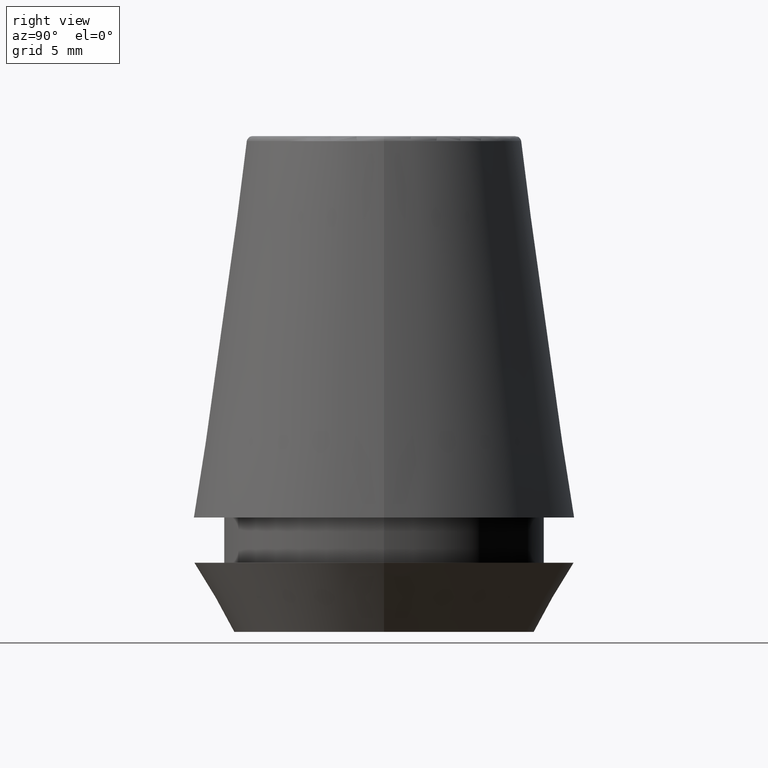
[diagram: clean part render]
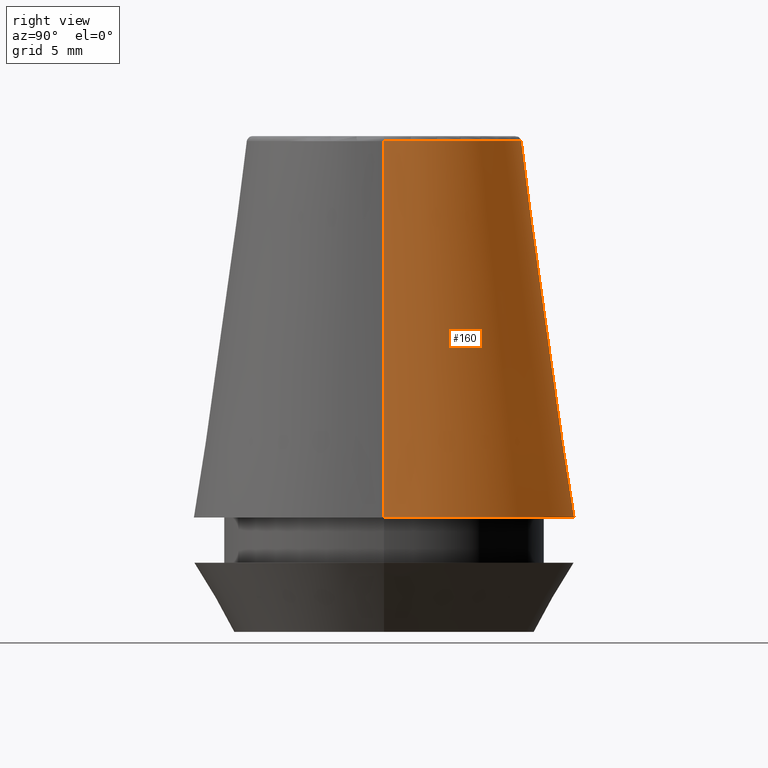
[diagram: same view with one face highlighted and labeled with its STEP entity id]
A machine part, right view. The second image highlights one B-rep face of the part: STEP entity #160.
In plain terms, the highlighted conical surface has half-angle 8 deg.
Its self-contained STEP definition (entity closure, byte-faithful):
#26 = EDGE_LOOP ( 'NONE', ( #252, #148, #291, #194 ) ) ;
#32 = DIRECTION ( 'NONE',  ( 1.000000000000000000, 0.0000000000000000000, 0.0000000000000000000 ) ) ;
#49 = CARTESIAN_POINT ( 'NONE',  ( 13.03657776635556700, 1.596520323340289600E-015, 7.842050807568876200 ) ) ;
#77 = DIRECTION ( 'NONE',  ( 0.1391731009600587800, 1.704378926181474000E-017, -0.9902680687415712500 ) ) ;
#81 = DIRECTION ( 'NONE',  ( -1.000000000000000000, 0.0000000000000000000, 0.0000000000000000000 ) ) ;
#108 = CARTESIAN_POINT ( 'NONE',  ( -9.408710285118862900, 0.0000000000000000000, 33.65566924038402900 ) ) ;
#120 = LINE ( 'NONE', #290, #317 ) ;
#126 = AXIS2_PLACEMENT_3D ( 'NONE', #202, #140, #32 ) ;
#138 = CARTESIAN_POINT ( 'NONE',  ( 0.0000000000000000000, 0.0000000000000000000, 33.65566924038402900 ) ) ;
#140 = DIRECTION ( 'NONE',  ( -0.0000000000000000000, -0.0000000000000000000, 1.000000000000000000 ) ) ;
#146 = AXIS2_PLACEMENT_3D ( 'NONE', #138, #205, #296 ) ;
#148 = ORIENTED_EDGE ( 'NONE', *, *, #366, .T. ) ;
#154 = VERTEX_POINT ( 'NONE', #108 ) ;
#155 = CARTESIAN_POINT ( 'NONE',  ( 9.408710285118862900, 1.374377508408924700E-015, 33.65566924038402900 ) ) ;
#160 = ADVANCED_FACE ( 'NONE', ( #271 ), #234, .T. ) ;
#194 = ORIENTED_EDGE ( 'NONE', *, *, #343, .F. ) ;
#202 = CARTESIAN_POINT ( 'NONE',  ( 0.0000000000000000000, 0.0000000000000000000, 7.842050807568876200 ) ) ;
#205 = DIRECTION ( 'NONE',  ( -0.0000000000000000000, -0.0000000000000000000, 1.000000000000000000 ) ) ;
#207 = CARTESIAN_POINT ( 'NONE',  ( 0.0000000000000000000, 0.0000000000000000000, 7.842050807568876200 ) ) ;
#232 = VERTEX_POINT ( 'NONE', #329 ) ;
#234 = CONICAL_SURFACE ( 'NONE', #350, 13.03657776635556700, 0.1396263401595396500 ) ;
#250 = DIRECTION ( 'NONE',  ( -0.1391731009600587800, 0.0000000000000000000, -0.9902680687415712500 ) ) ;
#252 = ORIENTED_EDGE ( 'NONE', *, *, #282, .F. ) ;
#265 = VERTEX_POINT ( 'NONE', #155 ) ;
#271 = FACE_OUTER_BOUND ( 'NONE', #26, .T. ) ;
#273 = LINE ( 'NONE', #49, #375 ) ;
#282 = EDGE_CURVE ( 'NONE', #265, #154, #285, .T. ) ;
#285 = CIRCLE ( 'NONE', #146, 9.408710285118862900 ) ;
#287 = EDGE_CURVE ( 'NONE', #232, #338, #335, .T. ) ;
#290 = CARTESIAN_POINT ( 'NONE',  ( -13.03657776635556700, 0.0000000000000000000, 7.842050807568876200 ) ) ;
#291 = ORIENTED_EDGE ( 'NONE', *, *, #287, .T. ) ;
#296 = DIRECTION ( 'NONE',  ( 1.000000000000000000, 0.0000000000000000000, 0.0000000000000000000 ) ) ;
#298 = CARTESIAN_POINT ( 'NONE',  ( -13.03657776635556700, 0.0000000000000000000, 7.842050807568876200 ) ) ;
#317 = VECTOR ( 'NONE', #250, 1000.000000000000000 ) ;
#329 = CARTESIAN_POINT ( 'NONE',  ( 13.03657776635556700, 1.596520323340289600E-015, 7.842050807568876200 ) ) ;
#335 = CIRCLE ( 'NONE', #126, 13.03657776635556700 ) ;
#338 = VERTEX_POINT ( 'NONE', #298 ) ;
#343 = EDGE_CURVE ( 'NONE', #154, #338, #120, .T. ) ;
#350 = AXIS2_PLACEMENT_3D ( 'NONE', #207, #368, #81 ) ;
#366 = EDGE_CURVE ( 'NONE', #265, #232, #273, .T. ) ;
#368 = DIRECTION ( 'NONE',  ( 0.0000000000000000000, 0.0000000000000000000, -1.000000000000000000 ) ) ;
#375 = VECTOR ( 'NONE', #77, 1000.000000000000000 ) ;